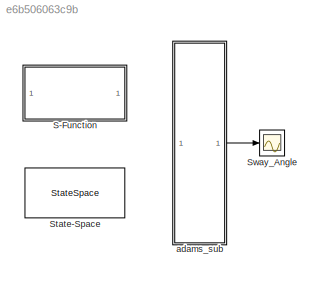
MODEL slx_e6b506063c9b
KIND model
CONFIG AbsTol = 1e-6
CONFIG EnableMultiTasking = off
CONFIG FixedStep = auto
CONFIG MaxStep = auto
CONFIG MinStep = auto
CONFIG RelTol = 1e-3
CONFIG SampleTimeConstraint = Unconstrained
CONFIG SolverName = ode45
CONFIG StartTime = 0.0
CONFIG StopTime = 1.0
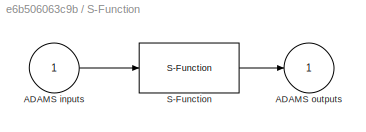
BLOCK [SubSystem] S-Function
  InitFcn = clear mex
  LoadFcn = %check based on dialog box setting for when setting by popup menu                                             \nif exist('ADAMS_solver_type')                                                                                 \n  if strcmp(ADAMS_solver_type,'C++')                                                                          \n    set_param(gcb,'exetyp','C++');                                 ...<+4486ch>
  OpenFcn = open_system(gcb,'mask')                                                                                                                          \nif not(exist('set_some_params_states'))                                                                                                          \n                                                                                                            ...<+625ch>
BLOCK [Inport] S-Function/ADAMS inputs
BLOCK [Outport] S-Function/ADAMS outputs
  InitialOutput = 0
  VectorParamsAs1DForOutWhenUnconnected = off
BLOCK [S-Function] S-Function/S-Function
  EnableBusSupport = off
  FunctionName = adams_plant
  Parameters = exevie,exesol,stat,outfil,nampre,o_rate,nam_in,namout,dft,modsim,modani,dt_out,inicmd,exetyp,comtyp,ada_host, workdir,pin_interp_order,pout_extrap_order,pin_extrap_order,pout_interp_order,simulink_lead_cosim,time_offset,pinput_id,poutput_id
  SFcnIsStateOwnerBlock = off
  SFunctionDeploymentMode = off
  StopFcn = clear mex
BLOCK [StateSpace] State-Space
  A = ADAMS_a
  B = ADAMS_b
  C = ADAMS_c
  D = ADAMS_d
  InitialCondition = 0
BLOCK [Scope] Sway_Angle
  Floating = off
  NumInputPorts = 1
  WasSavedAsWebScope = on
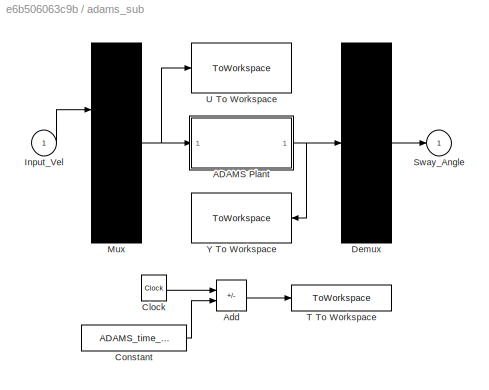
BLOCK [SubSystem] adams_sub
  ShowPortLabels = none
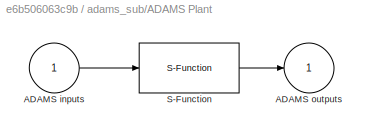
BLOCK [SubSystem] adams_sub/ADAMS Plant
  InitFcn = clear mex
  LoadFcn = %check based on dialog box setting for when setting by popup menu                                             \nif exist('ADAMS_solver_type')                                                                                 \n  if strcmp(ADAMS_solver_type,'C++')                                                                          \n    set_param(gcb,'exetyp','C++');                                 ...<+4486ch>
  OpenFcn = open_system(gcb,'mask')                                                                                                                          \nif not(exist('set_some_params_states'))                                                                                                          \n                                                                                                            ...<+625ch>
BLOCK [Inport] adams_sub/ADAMS Plant/ADAMS inputs
BLOCK [Outport] adams_sub/ADAMS Plant/ADAMS outputs
  InitialOutput = 0
  VectorParamsAs1DForOutWhenUnconnected = off
BLOCK [S-Function] adams_sub/ADAMS Plant/S-Function
  EnableBusSupport = off
  FunctionName = adams_plant
  Parameters = exevie,exesol,stat,outfil,nampre,o_rate,nam_in,namout,dft,modsim,modani,dt_out,inicmd,exetyp,comtyp,ada_host, workdir,pin_interp_order,pout_extrap_order,pin_extrap_order,pout_interp_order,simulink_lead_cosim,time_offset,pinput_id,poutput_id
  SFcnIsStateOwnerBlock = off
  SFunctionDeploymentMode = off
  StopFcn = clear mex
BLOCK [Sum] adams_sub/Add
  IconShape = rectangular
  Inputs = +-
BLOCK [Clock] adams_sub/Clock
BLOCK [Constant] adams_sub/Constant
  Value = ADAMS_time_offset
BLOCK [Demux] adams_sub/Demux
  DisplayOption = none
  Outputs = 1
BLOCK [Inport] adams_sub/Input_Vel
BLOCK [Mux] adams_sub/Mux
  Inputs = 1
BLOCK [Outport] adams_sub/Sway_Angle
BLOCK [ToWorkspace] adams_sub/T To Workspace
  MaxDataPoints = 100000
  VariableName = ADAMS_tout
BLOCK [ToWorkspace] adams_sub/U To Workspace
  MaxDataPoints = 100000
  VariableName = ADAMS_uout
BLOCK [ToWorkspace] adams_sub/Y To Workspace
  MaxDataPoints = 100000
  VariableName = ADAMS_yout
LINE S-Function/ADAMS inputs:1 -> S-Function/S-Function:1
LINE S-Function/S-Function:1 -> S-Function/ADAMS outputs:1
LINE adams_sub/ADAMS Plant/ADAMS inputs:1 -> adams_sub/ADAMS Plant/S-Function:1
LINE adams_sub/ADAMS Plant/S-Function:1 -> adams_sub/ADAMS Plant/ADAMS outputs:1
NET adams_sub/ADAMS Plant:1 -> adams_sub/Demux:1, adams_sub/Y To Workspace:1
LINE adams_sub/Add:1 -> adams_sub/T To Workspace:1
LINE adams_sub/Clock:1 -> adams_sub/Add:1
LINE adams_sub/Constant:1 -> adams_sub/Add:2
LINE adams_sub/Demux:1 -> adams_sub/Sway_Angle:1
LINE adams_sub/Input_Vel:1 -> adams_sub/Mux:1
NET adams_sub/Mux:1 -> adams_sub/ADAMS Plant:1, adams_sub/U To Workspace:1
LINE adams_sub:1 -> Sway_Angle:1
note: NET lines group one-source signal fan-out (src -> all destinations, sorted); 1:1 wires keep LINE
